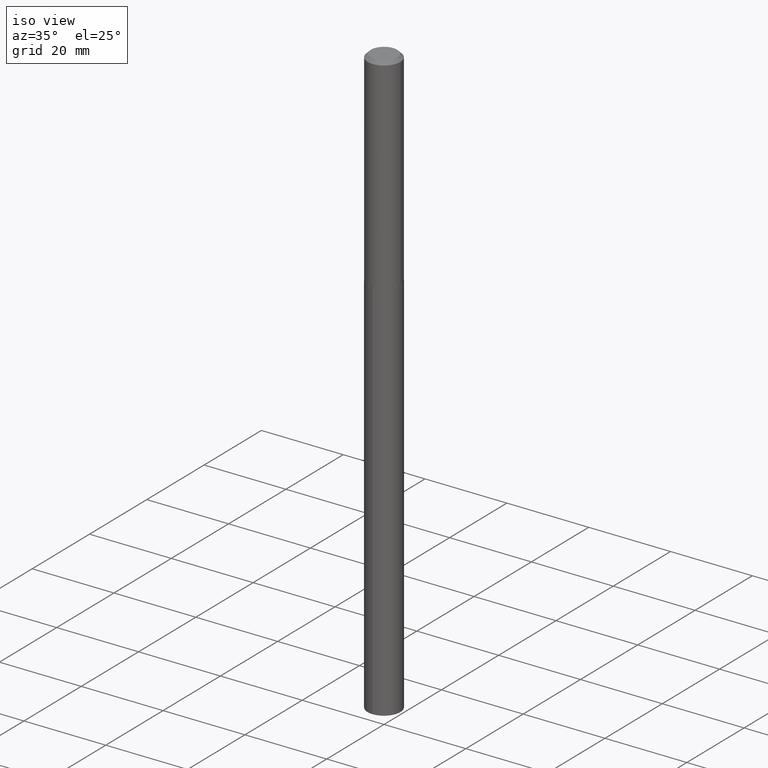
[diagram: clean part render]
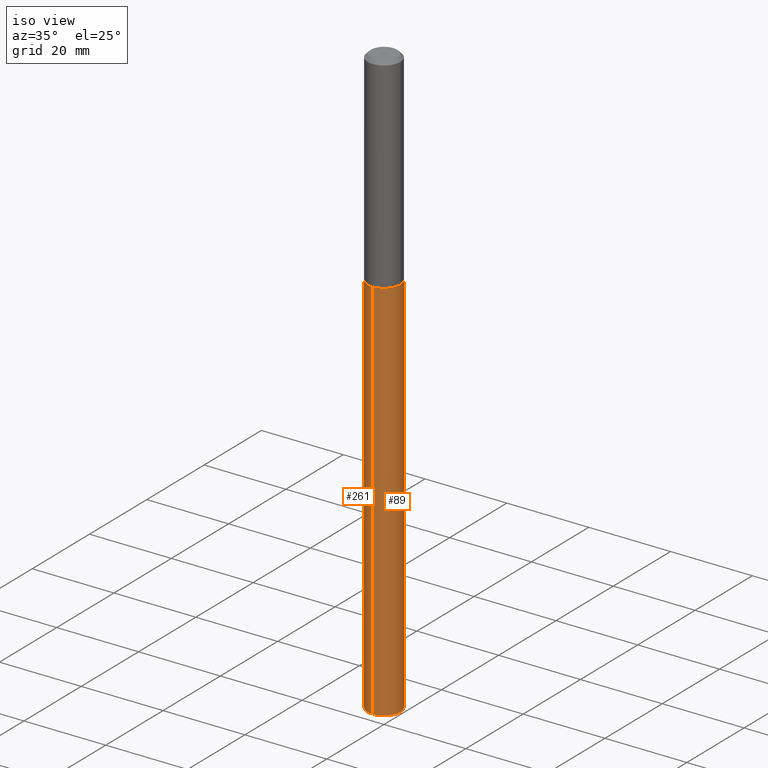
[diagram: same view with one multi-face feature highlighted, each face labeled with its STEP entity id]
A machine part, iso view. The highlighted faces form ONE feature: a constant-radius fillet chain: 2 tangent blend faces with common blend radius 4.0005 mm. The faces share edges in the B-rep.
Their STEP definitions:
[1] entity #89 (Cylinder):
#9 = AXIS2_PLACEMENT_3D ( 'NONE', #378, #297, #46 ) ;
#25 = EDGE_CURVE ( 'NONE', #291, #76, #374, .T. ) ;
#32 = CARTESIAN_POINT ( 'NONE',  ( -1.099816621735447457E-15, -0.1575000000000197631, -5.685959100090645535 ) ) ;
#46 = DIRECTION ( 'NONE',  ( -6.982962677686264344E-15, -1.000000000000000000, 3.469013325287953293E-15 ) ) ;
#48 = ORIENTED_EDGE ( 'NONE', *, *, #25, .T. ) ;
#57 = DIRECTION ( 'NONE',  ( -6.982962677686264344E-15, -1.000000000000000000, 3.469013325287953293E-15 ) ) ;
#76 = VERTEX_POINT ( 'NONE', #313 ) ;
#89 = ADVANCED_FACE ( 'NONE', ( #239 ), #369, .T. ) ;
#93 = DIRECTION ( 'NONE',  ( -2.445255354796806931E-29, 3.491787013380132143E-15, 1.000000000000000000 ) ) ;
#94 = VECTOR ( 'NONE', #93, 39.37007874015748143 ) ;
#112 = VERTEX_POINT ( 'NONE', #316 ) ;
#114 = VECTOR ( 'NONE', #137, 39.37007874015748143 ) ;
#120 = DIRECTION ( 'NONE',  ( -6.982962677686264344E-15, -1.000000000000000000, 6.938026650575906587E-15 ) ) ;
#122 = CARTESIAN_POINT ( 'NONE',  ( 4.814149891856059498E-29, -6.873330163646616008E-15, -1.968599999999999905 ) ) ;
#137 = DIRECTION ( 'NONE',  ( -2.445255354796806931E-29, 3.491787013380132143E-15, 1.000000000000000000 ) ) ;
#139 = AXIS2_PLACEMENT_3D ( 'NONE', #307, #152, #120 ) ;
#140 = EDGE_CURVE ( 'NONE', #112, #356, #187, .T. ) ;
#152 = DIRECTION ( 'NONE',  ( -2.445255354796806931E-29, 3.491787013380132143E-15, 1.000000000000000000 ) ) ;
#158 = LINE ( 'NONE', #345, #94 ) ;
#168 = EDGE_CURVE ( 'NONE', #76, #356, #253, .T. ) ;
#175 = EDGE_LOOP ( 'NONE', ( #48, #379, #199, #202 ) ) ;
#187 = CIRCLE ( 'NONE', #9, 0.1575000000000000011 ) ;
#199 = ORIENTED_EDGE ( 'NONE', *, *, #140, .F. ) ;
#202 = ORIENTED_EDGE ( 'NONE', *, *, #262, .F. ) ;
#204 = AXIS2_PLACEMENT_3D ( 'NONE', #122, #206, #57 ) ;
#206 = DIRECTION ( 'NONE',  ( -2.445255354796806931E-29, 3.491787013380132143E-15, 1.000000000000000000 ) ) ;
#239 = FACE_OUTER_BOUND ( 'NONE', #175, .T. ) ;
#250 = CARTESIAN_POINT ( 'NONE',  ( 1.119104808822297232E-15, 0.1574999999999931177, -1.968600000000000350 ) ) ;
#253 = LINE ( 'NONE', #380, #114 ) ;
#262 = EDGE_CURVE ( 'NONE', #291, #112, #158, .T. ) ;
#291 = VERTEX_POINT ( 'NONE', #32 ) ;
#297 = DIRECTION ( 'NONE',  ( -2.445255354796806931E-29, 3.491787013380132143E-15, 1.000000000000000000 ) ) ;
#307 = CARTESIAN_POINT ( 'NONE',  ( 1.390404213705535400E-28, -1.985355639341359418E-14, -5.685959100090646423 ) ) ;
#313 = CARTESIAN_POINT ( 'NONE',  ( 1.119104808822296246E-15, 0.1574999999999801281, -5.685959100090647311 ) ) ;
#316 = CARTESIAN_POINT ( 'NONE',  ( -1.099816621735538768E-15, -0.1575000000000068567, -1.968599999999999239 ) ) ;
#345 = CARTESIAN_POINT ( 'NONE',  ( -1.099816621735538768E-15, -0.1575000000000068567, -1.968599999999999239 ) ) ;
#356 = VERTEX_POINT ( 'NONE', #250 ) ;
#369 = CYLINDRICAL_SURFACE ( 'NONE', #204, 0.1575000000000000011 ) ;
#374 = CIRCLE ( 'NONE', #139, 0.1575000000000000011 ) ;
#378 = CARTESIAN_POINT ( 'NONE',  ( 4.814149891856059498E-29, -6.873330163646616008E-15, -1.968599999999999905 ) ) ;
#379 = ORIENTED_EDGE ( 'NONE', *, *, #168, .T. ) ;
#380 = CARTESIAN_POINT ( 'NONE',  ( 1.119104808822205527E-15, 0.1574999999999931177, -1.968600000000000350 ) ) ;
[2] entity #261 (Cylinder):
#16 = ORIENTED_EDGE ( 'NONE', *, *, #340, .F. ) ;
#19 = EDGE_CURVE ( 'NONE', #76, #291, #131, .T. ) ;
#28 = AXIS2_PLACEMENT_3D ( 'NONE', #160, #101, #130 ) ;
#32 = CARTESIAN_POINT ( 'NONE',  ( -1.099816621735447457E-15, -0.1575000000000197631, -5.685959100090645535 ) ) ;
#34 = DIRECTION ( 'NONE',  ( -6.982962677686264344E-15, -1.000000000000000000, 3.469013325287953293E-15 ) ) ;
#39 = DIRECTION ( 'NONE',  ( -2.445255354796806931E-29, 3.491787013380132143E-15, 1.000000000000000000 ) ) ;
#51 = ORIENTED_EDGE ( 'NONE', *, *, #168, .F. ) ;
#67 = CIRCLE ( 'NONE', #28, 0.1575000000000000011 ) ;
#76 = VERTEX_POINT ( 'NONE', #313 ) ;
#82 = ORIENTED_EDGE ( 'NONE', *, *, #19, .T. ) ;
#93 = DIRECTION ( 'NONE',  ( -2.445255354796806931E-29, 3.491787013380132143E-15, 1.000000000000000000 ) ) ;
#94 = VECTOR ( 'NONE', #93, 39.37007874015748143 ) ;
#101 = DIRECTION ( 'NONE',  ( -2.445255354796806931E-29, 3.491787013380132143E-15, 1.000000000000000000 ) ) ;
#112 = VERTEX_POINT ( 'NONE', #316 ) ;
#114 = VECTOR ( 'NONE', #137, 39.37007874015748143 ) ;
#130 = DIRECTION ( 'NONE',  ( -6.982962677686264344E-15, -1.000000000000000000, 3.469013325287953293E-15 ) ) ;
#131 = CIRCLE ( 'NONE', #335, 0.1575000000000000011 ) ;
#137 = DIRECTION ( 'NONE',  ( -2.445255354796806931E-29, 3.491787013380132143E-15, 1.000000000000000000 ) ) ;
#158 = LINE ( 'NONE', #345, #94 ) ;
#160 = CARTESIAN_POINT ( 'NONE',  ( 4.814149891856059498E-29, -6.873330163646616008E-15, -1.968599999999999905 ) ) ;
#168 = EDGE_CURVE ( 'NONE', #76, #356, #253, .T. ) ;
#170 = EDGE_LOOP ( 'NONE', ( #51, #82, #295, #16 ) ) ;
#183 = DIRECTION ( 'NONE',  ( -2.445255354796806931E-29, 3.491787013380132143E-15, 1.000000000000000000 ) ) ;
#238 = CARTESIAN_POINT ( 'NONE',  ( 1.390404213705535400E-28, -1.985355639341359418E-14, -5.685959100090646423 ) ) ;
#247 = CYLINDRICAL_SURFACE ( 'NONE', #301, 0.1575000000000000011 ) ;
#250 = CARTESIAN_POINT ( 'NONE',  ( 1.119104808822297232E-15, 0.1574999999999931177, -1.968600000000000350 ) ) ;
#253 = LINE ( 'NONE', #380, #114 ) ;
#261 = ADVANCED_FACE ( 'NONE', ( #312 ), #247, .T. ) ;
#262 = EDGE_CURVE ( 'NONE', #291, #112, #158, .T. ) ;
#291 = VERTEX_POINT ( 'NONE', #32 ) ;
#295 = ORIENTED_EDGE ( 'NONE', *, *, #262, .T. ) ;
#301 = AXIS2_PLACEMENT_3D ( 'NONE', #347, #39, #34 ) ;
#310 = DIRECTION ( 'NONE',  ( -6.982962677686264344E-15, -1.000000000000000000, 6.938026650575906587E-15 ) ) ;
#312 = FACE_OUTER_BOUND ( 'NONE', #170, .T. ) ;
#313 = CARTESIAN_POINT ( 'NONE',  ( 1.119104808822296246E-15, 0.1574999999999801281, -5.685959100090647311 ) ) ;
#316 = CARTESIAN_POINT ( 'NONE',  ( -1.099816621735538768E-15, -0.1575000000000068567, -1.968599999999999239 ) ) ;
#335 = AXIS2_PLACEMENT_3D ( 'NONE', #238, #183, #310 ) ;
#340 = EDGE_CURVE ( 'NONE', #356, #112, #67, .T. ) ;
#345 = CARTESIAN_POINT ( 'NONE',  ( -1.099816621735538768E-15, -0.1575000000000068567, -1.968599999999999239 ) ) ;
#347 = CARTESIAN_POINT ( 'NONE',  ( 4.814149891856059498E-29, -6.873330163646616008E-15, -1.968599999999999905 ) ) ;
#356 = VERTEX_POINT ( 'NONE', #250 ) ;
#380 = CARTESIAN_POINT ( 'NONE',  ( 1.119104808822205527E-15, 0.1574999999999931177, -1.968600000000000350 ) ) ;